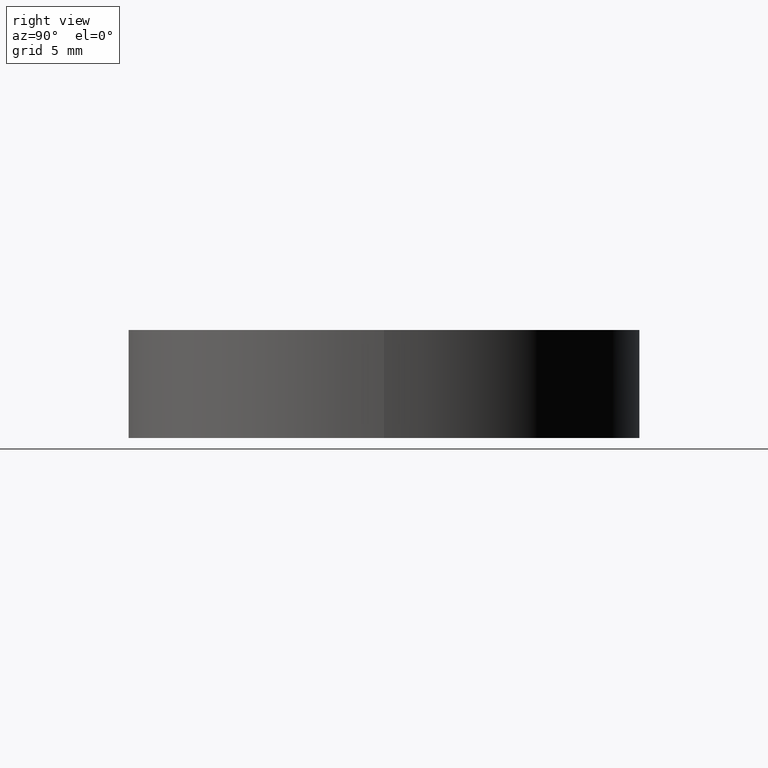
[diagram: clean part render]
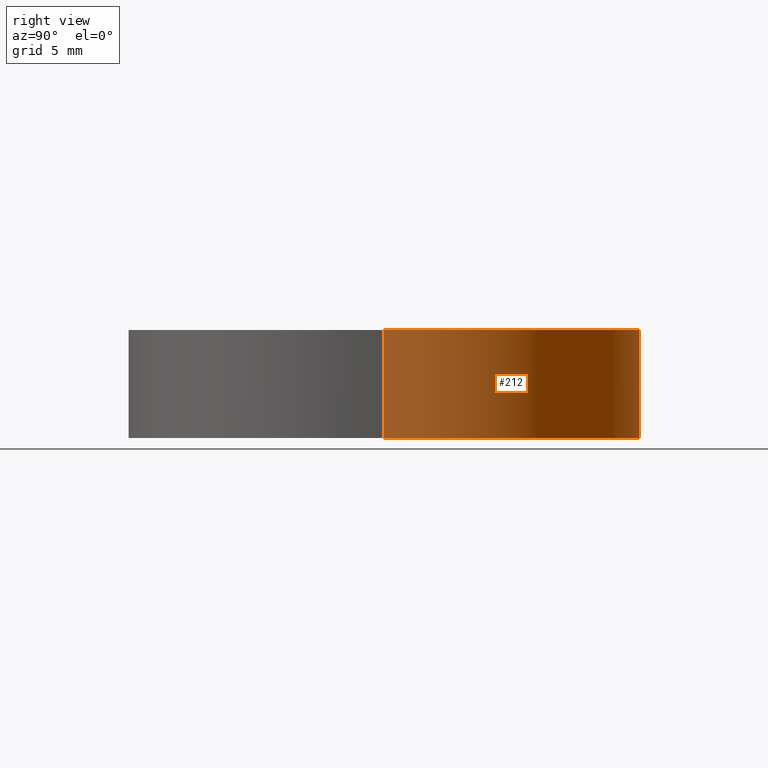
[diagram: same view with one face highlighted and labeled with its STEP entity id]
A machine part, right view. The second image highlights one B-rep face of the part: STEP entity #212.
In plain terms, the highlighted cylindrical surface (partial cylindrical patch) has radius 12.7 mm, axis along (0, 0, 1).
Its self-contained STEP definition (entity closure, byte-faithful):
#25 = VECTOR ( 'NONE', #98, 1000.000000000000000 ) ;
#49 = FACE_OUTER_BOUND ( 'NONE', #233, .T. ) ;
#51 = CIRCLE ( 'NONE', #201, 12.69999999999999900 ) ;
#56 = LINE ( 'NONE', #95, #58 ) ;
#57 = CIRCLE ( 'NONE', #196, 12.69999999999999900 ) ;
#58 = VECTOR ( 'NONE', #96, 1000.000000000000000 ) ;
#62 = CYLINDRICAL_SURFACE ( 'NONE', #181, 12.69999999999999900 ) ;
#63 = LINE ( 'NONE', #97, #25 ) ;
#70 = VERTEX_POINT ( 'NONE', #78 ) ;
#75 = VERTEX_POINT ( 'NONE', #83 ) ;
#76 = VERTEX_POINT ( 'NONE', #84 ) ;
#77 = VERTEX_POINT ( 'NONE', #85 ) ;
#78 = CARTESIAN_POINT ( 'NONE',  ( 12.69999999999999900, 0.0000000000000000000, -5.349999999999999600 ) ) ;
#83 = CARTESIAN_POINT ( 'NONE',  ( -12.69999999999999900, 1.555301434917138400E-015, -5.349999999999999600 ) ) ;
#84 = CARTESIAN_POINT ( 'NONE',  ( -12.69999999999999900, 1.555301434917138400E-015, 0.0000000000000000000 ) ) ;
#85 = CARTESIAN_POINT ( 'NONE',  ( 12.69999999999999900, 0.0000000000000000000, 0.0000000000000000000 ) ) ;
#92 = CARTESIAN_POINT ( 'NONE',  ( 0.0000000000000000000, 0.0000000000000000000, -5.349999999999999600 ) ) ;
#93 = DIRECTION ( 'NONE',  ( 0.0000000000000000000, 0.0000000000000000000, 1.000000000000000000 ) ) ;
#94 = DIRECTION ( 'NONE',  ( 1.000000000000000000, 0.0000000000000000000, 0.0000000000000000000 ) ) ;
#95 = CARTESIAN_POINT ( 'NONE',  ( -12.69999999999999900, 1.555301434917138400E-015, -5.349999999999999600 ) ) ;
#96 = DIRECTION ( 'NONE',  ( 0.0000000000000000000, 0.0000000000000000000, 1.000000000000000000 ) ) ;
#97 = CARTESIAN_POINT ( 'NONE',  ( 12.69999999999999900, 0.0000000000000000000, -5.349999999999999600 ) ) ;
#98 = DIRECTION ( 'NONE',  ( 0.0000000000000000000, 0.0000000000000000000, 1.000000000000000000 ) ) ;
#99 = CARTESIAN_POINT ( 'NONE',  ( 0.0000000000000000000, 0.0000000000000000000, 0.0000000000000000000 ) ) ;
#100 = DIRECTION ( 'NONE',  ( 0.0000000000000000000, 0.0000000000000000000, 1.000000000000000000 ) ) ;
#101 = DIRECTION ( 'NONE',  ( 1.000000000000000000, 0.0000000000000000000, 0.0000000000000000000 ) ) ;
#127 = CARTESIAN_POINT ( 'NONE',  ( 0.0000000000000000000, 0.0000000000000000000, -5.349999999999999600 ) ) ;
#128 = DIRECTION ( 'NONE',  ( 0.0000000000000000000, 0.0000000000000000000, 1.000000000000000000 ) ) ;
#129 = DIRECTION ( 'NONE',  ( 1.000000000000000000, 0.0000000000000000000, 0.0000000000000000000 ) ) ;
#167 = EDGE_CURVE ( 'NONE', #70, #75, #57, .T. ) ;
#168 = EDGE_CURVE ( 'NONE', #75, #76, #56, .T. ) ;
#169 = EDGE_CURVE ( 'NONE', #70, #77, #63, .T. ) ;
#170 = EDGE_CURVE ( 'NONE', #77, #76, #51, .T. ) ;
#181 = AXIS2_PLACEMENT_3D ( 'NONE', #127, #128, #129 ) ;
#196 = AXIS2_PLACEMENT_3D ( 'NONE', #92, #93, #94 ) ;
#201 = AXIS2_PLACEMENT_3D ( 'NONE', #99, #100, #101 ) ;
#212 = ADVANCED_FACE ( 'NONE', ( #49 ), #62, .T. ) ;
#220 = ORIENTED_EDGE ( 'NONE', *, *, #167, .T. ) ;
#230 = ORIENTED_EDGE ( 'NONE', *, *, #169, .F. ) ;
#233 = EDGE_LOOP ( 'NONE', ( #220, #246, #245, #230 ) ) ;
#245 = ORIENTED_EDGE ( 'NONE', *, *, #170, .F. ) ;
#246 = ORIENTED_EDGE ( 'NONE', *, *, #168, .T. ) ;